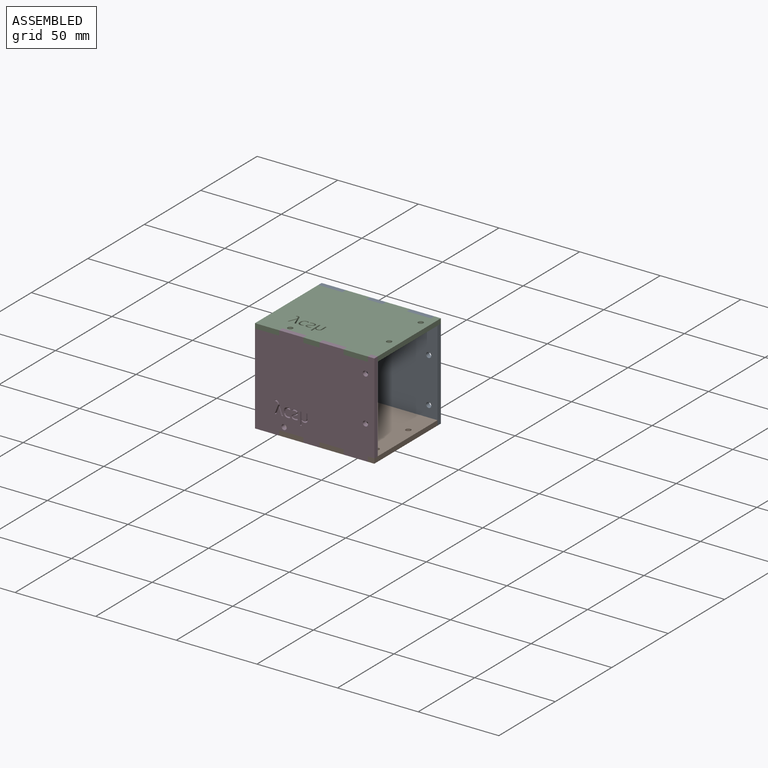
[diagram: assembled view]
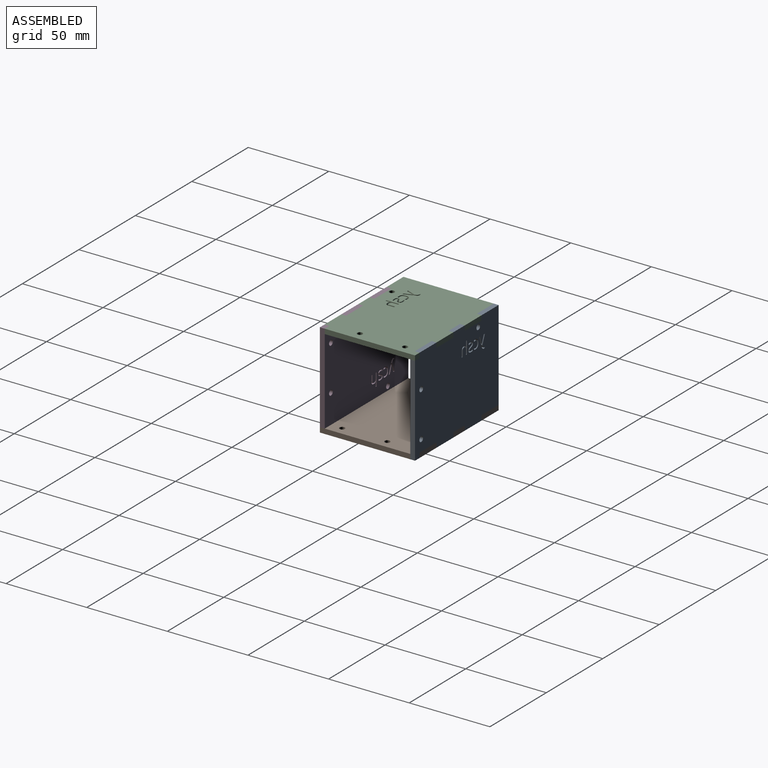
[diagram: assembled view, second angle]
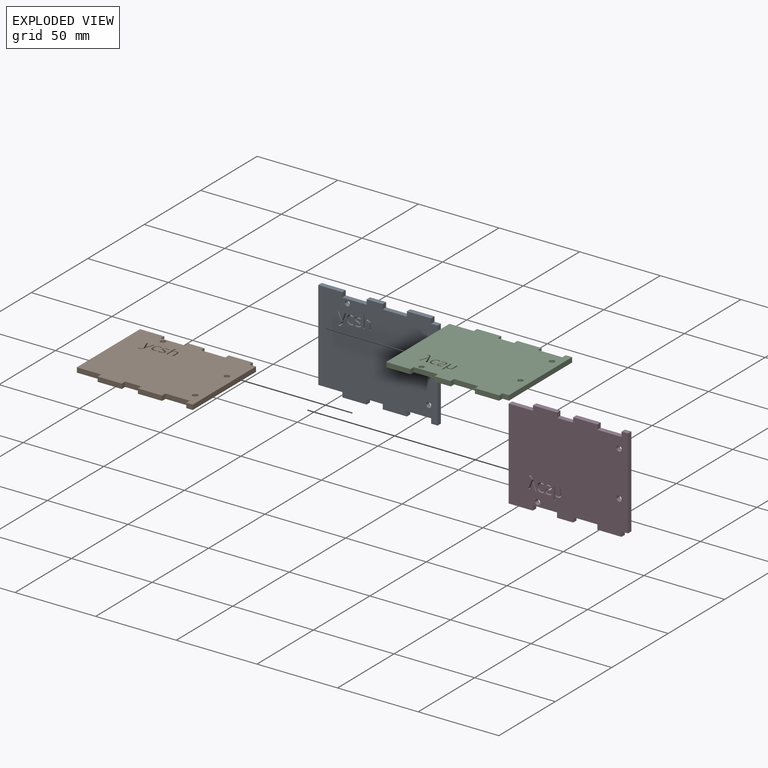
[diagram: exploded view]
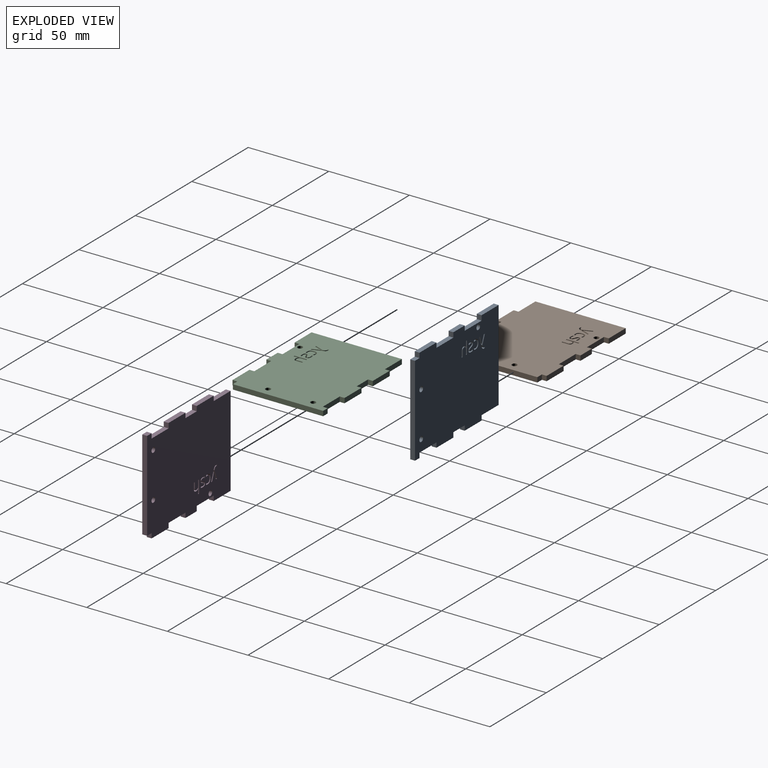
[diagram: exploded view, second angle]
ASSEMBLY  parts=4 mates=3
PART A: 103 faces, bbox 74x59x3 mm
  f0: plane 56x3mm, normal (-1,0,0), area 168mm2, adj f1,f100,f101,f102
  f1: plane 15x3mm, normal (0,-1,0), area 45mm2, adj f0,f2,f101,f102
  f2: plane 3x3mm, normal (-1,0,0), area 9mm2, adj f1,f3,f101,f102
  f3: plane 15x3mm, normal (0,-1,0), area 45mm2, adj f2,f4,f101,f102
  f4: plane 3x3mm, normal (1,0,0), area 9mm2, adj f3,f5,f101,f102
  f5: plane 10x3mm, normal (0,-1,0), area 30mm2, adj f4,f6,f101,f102
  f6: plane 3x3mm, normal (-1,0,0), area 9mm2, adj f5,f7,f101,f102
  f7: plane 15x3mm, normal (0,-1,0), area 45mm2, adj f6,f8,f101,f102
  f8: plane 3x3mm, normal (1,0,0), area 9mm2, adj f7,f9,f101,f102
  f9: plane 15x3mm, normal (0,-1,0), area 45mm2, adj f8,f10,f101,f102
  f10: plane 3x3mm, normal (-1,0,0), area 9mm2, adj f9,f11,f101,f102
  f11: plane 4x3mm, normal (0,-1,0), area 12mm2, adj f10,f12,f101,f102
  f12: plane 56x3mm, normal (1,0,0), area 168mm2, adj f11,f13,f101,f102
  f13: plane 4x3mm, normal (0,1,0), area 12mm2, adj f12,f14,f101,f102
  f14: plane 3x3mm, normal (1,0,0), area 9mm2, adj f13,f15,f101,f102
  f15: plane 15x3mm, normal (0,1,0), area 45mm2, adj f14,f16,f101,f102
  f16: plane 3x3mm, normal (-1,0,0), area 9mm2, adj f15,f17,f101,f102
  f17: plane 15x3mm, normal (0,1,0), area 45mm2, adj f16,f18,f101,f102
  f18: plane 3x3mm, normal (1,0,0), area 9mm2, adj f17,f19,f101,f102
  f19: plane 10x3mm, normal (0,1,0), area 30mm2, adj f18,f20,f101,f102
  f20: plane 3x3mm, normal (-1,0,0), area 9mm2, adj f19,f21,f101,f102
  f21: plane 15x3mm, normal (0,1,0), area 45mm2, adj f20,f22,f101,f102
  f22: plane 3x3mm, normal (1,0,0), area 9mm2, adj f21,f100,f101,f102
  f23: plane 3x0.83mm, normal (0,1,0), area 2.5mm2, adj f24,f96,f101,f102
  f24: plane 3.56x3mm, normal (1,0,0), area 10.7mm2, adj f23,f25,f101,f102
  f25: extruded ~3x1mm, area 3.2mm2, adj f24,f26,f101,f102
  f26: extruded ~3x0.96mm, area 3.1mm2, adj f25,f27,f101,f102
  f27: extruded ~3x1.27mm, area 4.2mm2, adj f26,f28,f101,f102
  f28: extruded ~3x1.54mm, area 4.9mm2, adj f27,f29,f101,f102
  f29: plane 3x2.88mm, normal (-1,0,0), area 8.6mm2, adj f28,f30,f101,f102
  f30: plane 3x0.83mm, normal (0,1,0), area 2.5mm2, adj f29,f31,f101,f102
  f31: plane 7.81x3mm, normal (1,0,0), area 23.4mm2, adj f30,f32,f101,f102
  f32: plane 3x0.83mm, normal (0,-1,0), area 2.5mm2, adj f31,f33,f101,f102
  f33: plane 3x2.36mm, normal (-1,0,0), area 7.1mm2, adj f32,f34,f101,f102
  f34: extruded ~3x0.71mm, area 2.1mm2, adj f33,f35,f101,f102
  f35: plane 3x0.05mm, normal (0,-1,0), area 0.1mm2, adj f34,f36,f101,f102
  f36: extruded ~3x0.7mm, area 2.9mm2, adj f35,f37,f101,f102
  f37: extruded ~3x1.04mm, area 3.2mm2, adj f36,f38,f101,f102
  f38: extruded ~3x1.51mm, area 4.9mm2, adj f37,f39,f101,f102
  f39: extruded ~3x1.52mm, area 4.9mm2, adj f38,f96,f101,f102
  f40: extruded ~3x0.91mm, area 3mm2, adj f41,f97,f101,f102
  f41: extruded ~3x1.18mm, area 4.1mm2, adj f40,f42,f101,f102
  f42: extruded ~3x1.61mm, area 5.1mm2, adj f41,f43,f101,f102
  f43: extruded ~3x1.71mm, area 5.3mm2, adj f42,f44,f101,f102
  f44: plane 3x0.77mm, normal (1,0,0), area 2.3mm2, adj f43,f45,f101,f102
  f45: extruded ~3x0.85mm, area 2.7mm2, adj f44,f46,f101,f102
  f46: extruded ~3x0.88mm, area 2.7mm2, adj f45,f47,f101,f102
  f47: extruded ~3x1mm, area 3.1mm2, adj f46,f48,f101,f102
  f48: extruded ~3x0.64mm, area 2.3mm2, adj f47,f49,f101,f102
  f49: extruded ~3x0.55mm, area 1.9mm2, adj f48,f50,f101,f102
  f50: extruded ~3x1.09mm, area 3.7mm2, adj f49,f51,f101,f102
  f51: extruded ~3x1.09mm, area 3.6mm2, adj f50,f52,f101,f102
  f52: extruded ~3x0.48mm, area 2.1mm2, adj f51,f53,f101,f102
  f53: extruded ~3x0.65mm, area 2mm2, adj f52,f54,f101,f102
  f54: extruded ~3x1.06mm, area 3.7mm2, adj f53,f55,f101,f102
  f55: extruded ~3x1.5mm, area 4.7mm2, adj f54,f56,f101,f102
  f56: extruded ~3x1.74mm, area 5.4mm2, adj f55,f57,f101,f102
  f57: plane 3x0.68mm, normal (-0.92,0.4,0), area 2.2mm2, adj f56,f58,f101,f102
  f58: extruded ~3x1.5mm, area 4.6mm2, adj f57,f59,f101,f102
  f59: extruded ~3x0.89mm, area 2.8mm2, adj f58,f60,f101,f102
  f60: extruded ~3x0.51mm, area 1.9mm2, adj f59,f61,f101,f102
  f61: extruded ~3x0.38mm, area 1.2mm2, adj f60,f62,f101,f102
  f62: extruded ~3x0.36mm, area 1.4mm2, adj f61,f63,f101,f102
  f63: extruded ~3x0.96mm, area 3.1mm2, adj f62,f97,f101,f102
  f64: extruded ~3x1.39mm, area 4.3mm2, adj f65,f98,f101,f102
  f65: extruded ~3x1.85mm, area 6.2mm2, adj f64,f66,f101,f102
  f66: extruded ~3x2.08mm, area 6.7mm2, adj f65,f67,f101,f102
  f67: extruded ~3x2.13mm, area 6.9mm2, adj f66,f68,f101,f102
  f68: extruded ~3x1.89mm, area 6.3mm2, adj f67,f69,f101,f102
  f69: extruded ~3x0.79mm, area 2.4mm2, adj f68,f70,f101,f102
  f70: extruded ~3x0.62mm, area 2mm2, adj f69,f71,f101,f102
  f71: plane 3x0.71mm, normal (-0.94,0.34,0), area 2.3mm2, adj f70,f72,f101,f102
  f72: extruded ~3x0.6mm, area 1.9mm2, adj f71,f73,f101,f102
  f73: extruded ~3x0.58mm, area 1.7mm2, adj f72,f74,f101,f102
  f74: extruded ~3x2.14mm, area 9.3mm2, adj f73,f75,f101,f102
  f75: extruded ~3x1.56mm, area 4.9mm2, adj f74,f76,f101,f102
  f76: extruded ~3x1.21mm, area 4.1mm2, adj f75,f77,f101,f102
  f77: extruded ~3x1.41mm, area 4.3mm2, adj f76,f98,f101,f102
  f78: plane 5.53x3mm, normal (0.93,0.37,0), area 17.9mm2, adj f79,f99,f101,f102
  f79: plane 3x0.89mm, normal (0,-1,0), area 2.7mm2, adj f78,f80,f101,f102
  f80: plane 3.14x3mm, normal (-0.93,-0.36,0), area 10.1mm2, adj f79,f81,f101,f102
  f81: extruded ~3x1.55mm, area 4.9mm2, adj f80,f82,f101,f102
  f82: plane 3x0.04mm, normal (0,-1,0), area 0.1mm2, adj f81,f83,f101,f102
  f83: extruded ~3x0.88mm, area 2.8mm2, adj f82,f84,f101,f102
  f84: extruded ~3.81x3mm, area 12.1mm2, adj f83,f85,f101,f102
  f85: plane 3x0.89mm, normal (0,-1,0), area 2.7mm2, adj f84,f86,f101,f102
  f86: plane 6.26x3mm, normal (-0.94,0.35,0), area 20.1mm2, adj f85,f87,f101,f102
  f87: extruded ~3x1.32mm, area 4.7mm2, adj f86,f88,f101,f102
  f88: extruded ~3x1.15mm, area 3.7mm2, adj f87,f89,f101,f102
  f89: extruded ~3x0.75mm, area 2.3mm2, adj f88,f90,f101,f102
  f90: plane 3x0.67mm, normal (1,0,0), area 2mm2, adj f89,f91,f101,f102
  f91: extruded ~3x0.62mm, area 1.9mm2, adj f90,f92,f101,f102
  f92: extruded ~3x1.23mm, area 5mm2, adj f91,f99,f101,f102
  f93: cylinder r=1.6mm len=3.2mm, axis (0,0,-1), area 30.2mm2, adj f101,f102
  f94: cylinder r=1.6mm len=3.2mm, axis (0,0,-1), area 30.2mm2, adj f101,f102
  f95: cylinder r=1.6mm len=3.2mm, axis (0,0,-1), area 30.2mm2, adj f101,f102
  f96: plane 3.59x3mm, normal (-1,0,0), area 10.8mm2, adj f23,f39,f101,f102
  f97: extruded ~3x1.32mm, area 4.5mm2, adj f40,f63,f101,f102
  f98: plane 3x0.74mm, normal (-1,0,0), area 2.2mm2, adj f64,f77,f101,f102
  f99: plane 3x0.78mm, normal (0.93,-0.37,0), area 2.5mm2, adj f78,f92,f101,f102
  f100: plane 15x3mm, normal (0,1,0), area 45mm2, adj f0,f22,f101,f102
  f101: plane 74x59mm, normal (0,0,1), area 4077.9mm2, adj f0,f1,f2,f3,f4,f5,f6,f7
  f102: plane 74x59mm, normal (0,0,-1), area 4077.9mm2, adj f0,f1,f2,f3,f4,f5,f6,f7
PART B: same geometry as A
PART C: same geometry as A
PART D: same geometry as A
PLACE A rot(axis=(1,0,0),90deg) t=(25.79,37.52,49.96)mm
PLACE B t=(25.79,8.02,20.46)mm
PLACE C rot(axis=(-1,0,0),180deg) t=(25.79,8.02,79.46)mm
PLACE D rot(axis=(-1,0,0),90deg) t=(25.79,-21.48,49.96)mm
MATE fastened D.f10 <-> C.f14  axis (-1,0,0) through (58.79,-19.98,77.96)mm
MATE fastened C.f10 <-> A.f14  axis (-1,0,0) through (58.79,36.02,77.96)mm
MATE fastened B.f14 <-> A.f10  axis (1,0,0) through (58.79,36.02,21.96)mm
